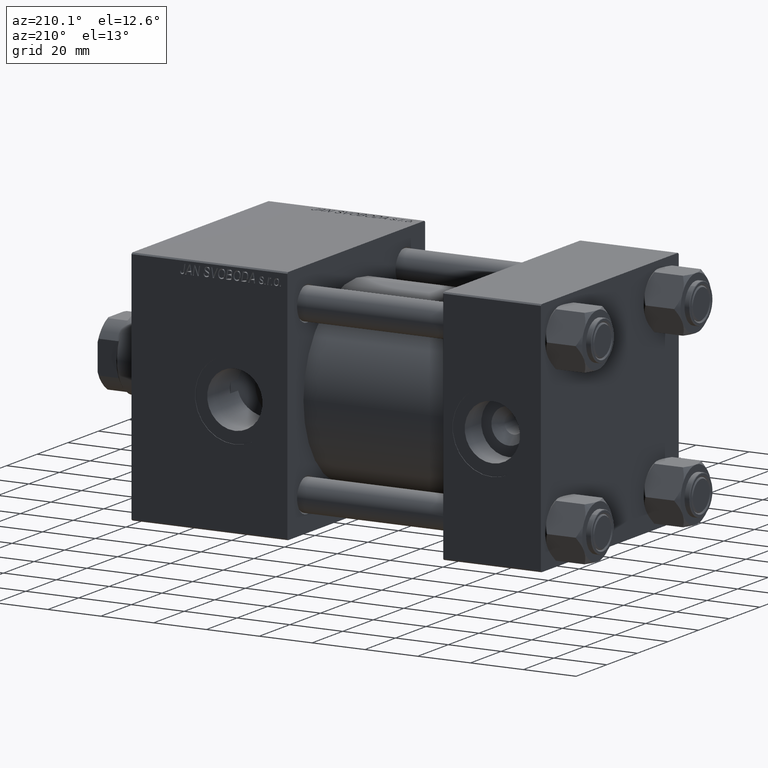
[diagram: clean part render]
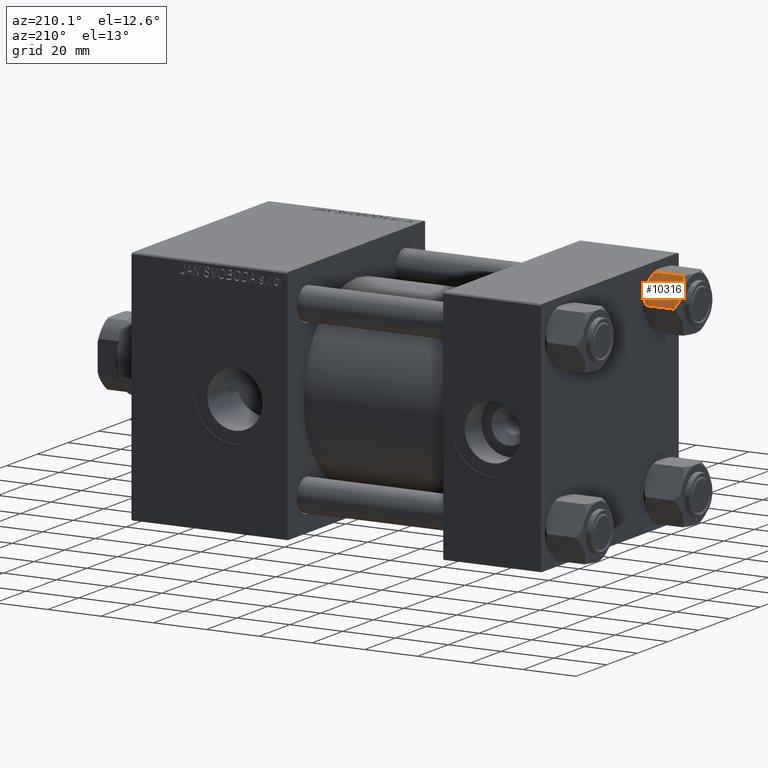
[diagram: same view with one face highlighted and labeled with its STEP entity id]
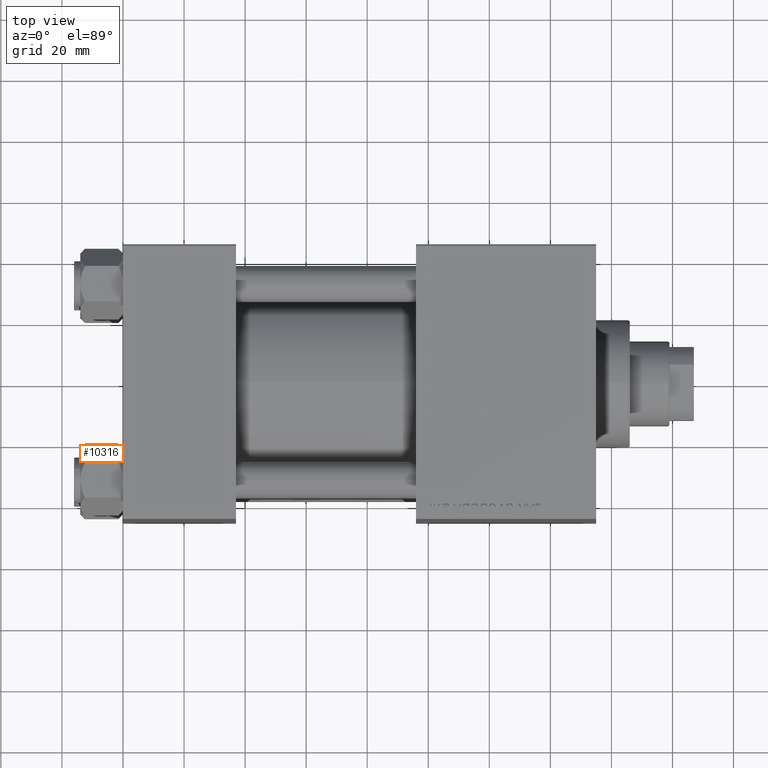
[diagram: same view with one face highlighted and labeled with its STEP entity id]
A machine part, auxiliary view. The second image highlights one B-rep face of the part: STEP entity #10316.
A second angle (top view) of the same face is appended — the face is thin or edge-on in the first view.
In plain terms, the highlighted planar face has unit normal (0, -0.866, -0.5).
Its self-contained STEP definition (entity closure, byte-faithful):
#376 = CARTESIAN_POINT ( 'NONE',  ( -5.810000000000000497, -10.06321519197517844, -1.556784808024813893 ) ) ;
#2374 = ORIENTED_EDGE ( 'NONE', *, *, #26890, .F. ) ;
#2520 = EDGE_CURVE ( 'NONE', #31035, #9435, #9418, .T. ) ;
#5716 = CARTESIAN_POINT ( 'NONE',  ( -6.731401448974990487, -8.467301068182912616, -13.28585617404753627 ) ) ;
#6366 = CARTESIAN_POINT ( 'NONE',  ( -9.974696630283190757, -2.849749030213787115, -0.3002673809867329457 ) ) ;
#6623 = CARTESIAN_POINT ( 'NONE',  ( -10.69859855102500923, -1.595914123792257611, -0.7141438259524607313 ) ) ;
#6719 = CARTESIAN_POINT ( 'NONE',  ( -8.715000000000005187, -5.031607595987585668, -14.00000000000000000 ) ) ;
#7175 = CARTESIAN_POINT ( 'NONE',  ( -8.715000000000006963, -5.031607595987586556, 0.000000000000000000 ) ) ;
#8321 = CARTESIAN_POINT ( 'NONE',  ( -5.810000000000000497, -10.06321519197517844, -1.556784808024813893 ) ) ;
#8479 = LINE ( 'NONE', #12546, #15785 ) ;
#8921 = FACE_OUTER_BOUND ( 'NONE', #19696, .T. ) ;
#9418 = B_SPLINE_CURVE_WITH_KNOTS ( 'NONE', 3,
 ( #17393, #28827, #5716, #12595, #28079, #29569, #25260, #6719 ),
 .UNSPECIFIED., .F., .F.,
 ( 4, 2, 2, 4 ),
 ( 2.544312114906334931E-07, 0.003011550106433545128, 0.004517197944044571388, 0.006022845781655597648 ),
 .UNSPECIFIED. ) ;
#9435 = VERTEX_POINT ( 'NONE', #19083 ) ;
#9650 = DIRECTION ( 'NONE',  ( 0.8660254037844390407, 0.4999999999999995004, 0.000000000000000000 ) ) ;
#10316 = ADVANCED_FACE ( 'NONE', ( #8921 ), #16290, .F. ) ;
#10756 = CARTESIAN_POINT ( 'NONE',  ( -11.61999999999999922, 6.270720075409452187E-15, -1.556784808024810562 ) ) ;
#11185 = VERTEX_POINT ( 'NONE', #8321 ) ;
#11436 = CARTESIAN_POINT ( 'NONE',  ( -11.61999999999999922, 6.270720075510426383E-15, -12.44321519197518811 ) ) ;
#11621 = VERTEX_POINT ( 'NONE', #10756 ) ;
#12546 = CARTESIAN_POINT ( 'NONE',  ( -11.61999999999999922, 6.288644352490894150E-15, -14.00000000000000000 ) ) ;
#12595 = CARTESIAN_POINT ( 'NONE',  ( -7.455303369716807182, -7.213466161761382445, -13.69973261901325934 ) ) ;
#12907 = EDGE_CURVE ( 'NONE', #31035, #11185, #44907, .T. ) ;
#15785 = VECTOR ( 'NONE', #48321, 1000.000000000000000 ) ;
#16290 = PLANE ( 'NONE',  #41406 ) ;
#17393 = CARTESIAN_POINT ( 'NONE',  ( -5.810000000000000497, -10.06321519197517844, -12.44321519197518455 ) ) ;
#17546 = CARTESIAN_POINT ( 'NONE',  ( -11.16445427487471420, -0.7890283410877914072, -1.101239082899528432 ) ) ;
#18571 = CARTESIAN_POINT ( 'NONE',  ( -8.969430103550386946, -4.590921729663310025, 6.662949392646161370E-15 ) ) ;
#18947 = CARTESIAN_POINT ( 'NONE',  ( -6.265018354709776638, -9.275100283241451748, -1.101766453314952043 ) ) ;
#19083 = CARTESIAN_POINT ( 'NONE',  ( -8.715000000000005187, -5.031607595987585668, -14.00000000000000000 ) ) ;
#19696 = EDGE_LOOP ( 'NONE', ( #21357, #22138, #36601, #32018, #2374, #23592 ) ) ;
#21181 = B_SPLINE_CURVE_WITH_KNOTS ( 'NONE', 3,
 ( #26760, #41039, #21261, #36988, #21757, #37503 ),
 .UNSPECIFIED., .F., .F.,
 ( 4, 2, 4 ),
 ( 0.006022845781655597648, 0.009013049135303643697, 0.01200325248895169061 ),
 .UNSPECIFIED. ) ;
#21261 = CARTESIAN_POINT ( 'NONE',  ( -9.716999946243696229, -3.296092779912219495, -13.84547602999602134 ) ) ;
#21357 = ORIENTED_EDGE ( 'NONE', *, *, #2520, .F. ) ;
#21608 = CARTESIAN_POINT ( 'NONE',  ( -11.61999999999999922, 6.270720075409452187E-15, -1.556784808024810562 ) ) ;
#21757 = CARTESIAN_POINT ( 'NONE',  ( -11.16498164529022041, -0.7881149087337220305, -12.89823354668505040 ) ) ;
#21869 = CARTESIAN_POINT ( 'NONE',  ( -8.715000000000006963, -5.031607595987586556, 0.000000000000000000 ) ) ;
#22010 = VERTEX_POINT ( 'NONE', #11436 ) ;
#22138 = ORIENTED_EDGE ( 'NONE', *, *, #12907, .T. ) ;
#23505 = CARTESIAN_POINT ( 'NONE',  ( -6.733375043383495573, -8.463882702393842550, -0.7114554706434480513 ) ) ;
#23579 = EDGE_CURVE ( 'NONE', #32902, #11185, #47556, .T. ) ;
#23592 = ORIENTED_EDGE ( 'NONE', *, *, #49782, .F. ) ;
#25260 = CARTESIAN_POINT ( 'NONE',  ( -8.460569896449618099, -5.472293462311855095, -14.00000000000000355 ) ) ;
#25875 = DIRECTION ( 'NONE',  ( -0.000000000000000000, -0.000000000000000000, 1.000000000000000000 ) ) ;
#26760 = CARTESIAN_POINT ( 'NONE',  ( -8.715000000000005187, -5.031607595987585668, -14.00000000000000000 ) ) ;
#26890 = EDGE_CURVE ( 'NONE', #22010, #11621, #8479, .T. ) ;
#28079 = CARTESIAN_POINT ( 'NONE',  ( -7.700834831386345058, -6.788193195293090731, -13.80960203119265906 ) ) ;
#28827 = CARTESIAN_POINT ( 'NONE',  ( -6.265545725125286403, -9.274186850887383926, -12.89876091710047135 ) ) ;
#29569 = CARTESIAN_POINT ( 'NONE',  ( -8.202333004087901003, -5.919572880271046778, -13.96005881939309390 ) ) ;
#30866 = CARTESIAN_POINT ( 'NONE',  ( -8.715000000000006963, -5.031607595987586556, 0.000000000000000000 ) ) ;
#31035 = VERTEX_POINT ( 'NONE', #40866 ) ;
#32018 = ORIENTED_EDGE ( 'NONE', *, *, #45829, .F. ) ;
#32902 = VERTEX_POINT ( 'NONE', #7175 ) ;
#33044 = CARTESIAN_POINT ( 'NONE',  ( -9.729165168613654657, -3.275021996682076608, -0.1903979688073365595 ) ) ;
#33503 = CARTESIAN_POINT ( 'NONE',  ( -5.810000000000000497, -10.06321519197517844, -14.00000000000000000 ) ) ;
#34437 = CARTESIAN_POINT ( 'NONE',  ( -7.713000053756304375, -6.767122412062951398, -0.1545239700039803266 ) ) ;
#36325 = DIRECTION ( 'NONE',  ( -0.4999999999999994449, 0.8660254037844389297, 0.000000000000000000 ) ) ;
#36601 = ORIENTED_EDGE ( 'NONE', *, *, #23579, .F. ) ;
#36988 = CARTESIAN_POINT ( 'NONE',  ( -10.69662495661650325, -1.599332489581326122, -13.28854452935654962 ) ) ;
#37428 = VECTOR ( 'NONE', #25875, 1000.000000000000000 ) ;
#37503 = CARTESIAN_POINT ( 'NONE',  ( -11.61999999999999922, 6.270720075510426383E-15, -12.44321519197518811 ) ) ;
#37605 = CARTESIAN_POINT ( 'NONE',  ( -9.227666995912100489, -4.143642311704120118, -0.03994118060690279165 ) ) ;
#40121 = CARTESIAN_POINT ( 'NONE',  ( -5.810000000000000497, -10.06321519197517844, -14.00000000000000000 ) ) ;
#40866 = CARTESIAN_POINT ( 'NONE',  ( -5.810000000000000497, -10.06321519197517844, -12.44321519197518455 ) ) ;
#41039 = CARTESIAN_POINT ( 'NONE',  ( -9.220295946303432189, -4.156409344131445138, -14.00000000000000711 ) ) ;
#41406 = AXIS2_PLACEMENT_3D ( 'NONE', #40121, #9650, #36325 ) ;
#42530 = CARTESIAN_POINT ( 'NONE',  ( -8.209704053696567527, -5.906805847843720869, 6.159623592433269699E-15 ) ) ;
#44907 = LINE ( 'NONE', #33503, #37428 ) ;
#45829 = EDGE_CURVE ( 'NONE', #11621, #32902, #46866, .T. ) ;
#46866 = B_SPLINE_CURVE_WITH_KNOTS ( 'NONE', 3,
 ( #21608, #17546, #6623, #6366, #33044, #37605, #18571, #21869 ),
 .UNSPECIFIED., .F., .F.,
 ( 4, 2, 2, 4 ),
 ( 2.544312114893457383E-07, 0.003011550106433538623, 0.004517197944044561847, 0.006022845781655586372 ),
 .UNSPECIFIED. ) ;
#47556 = B_SPLINE_CURVE_WITH_KNOTS ( 'NONE', 3,
 ( #30866, #42530, #34437, #23505, #18947, #376 ),
 .UNSPECIFIED., .F., .F.,
 ( 4, 2, 4 ),
 ( 0.006022845781655586372, 0.009013049135303635023, 0.01200325248895168367 ),
 .UNSPECIFIED. ) ;
#48321 = DIRECTION ( 'NONE',  ( -0.000000000000000000, -0.000000000000000000, 1.000000000000000000 ) ) ;
#49782 = EDGE_CURVE ( 'NONE', #9435, #22010, #21181, .T. ) ;